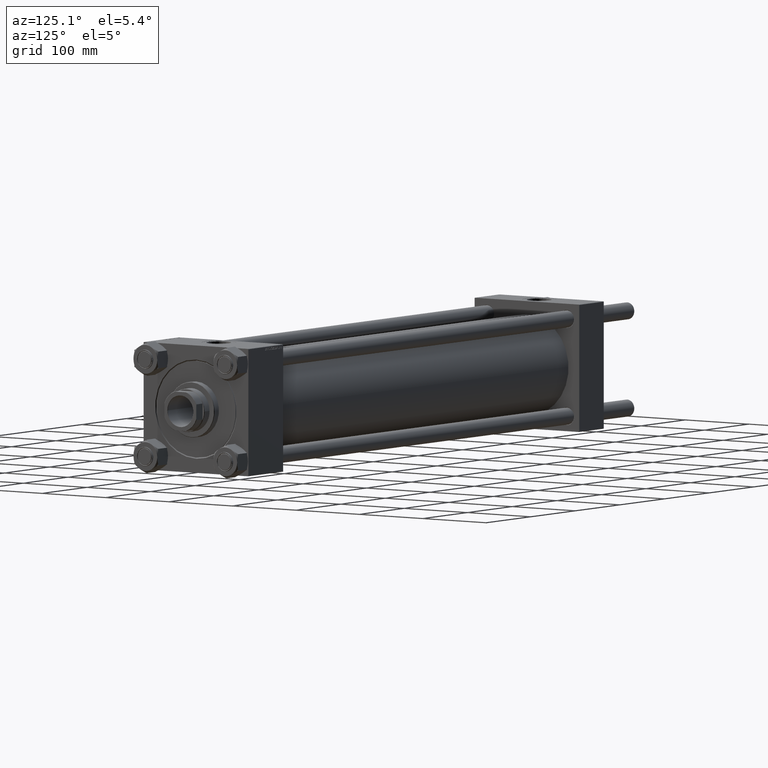
[diagram: clean part render]
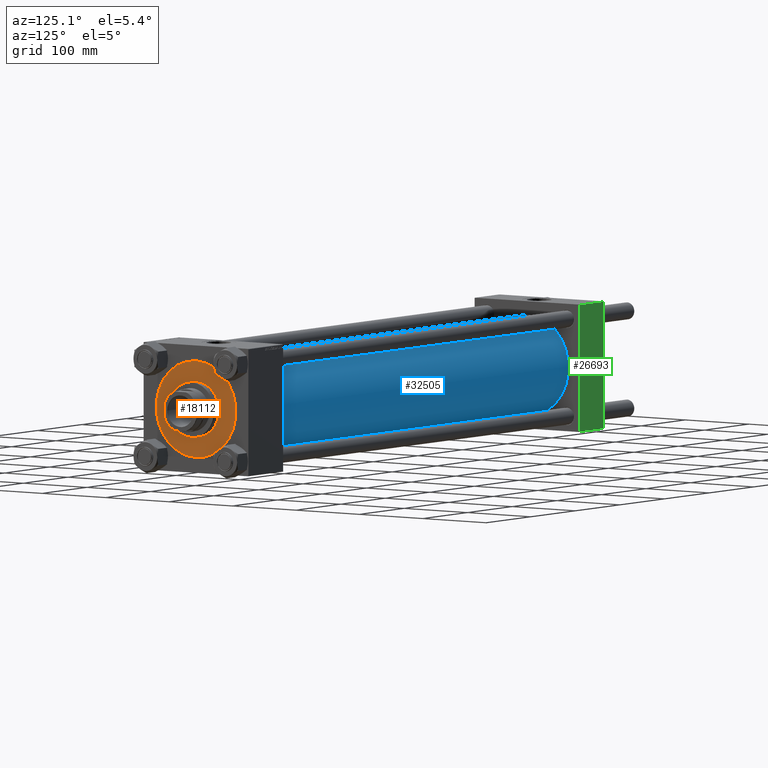
[diagram: same view with three faces highlighted in distinct colors, each labeled with its STEP entity id]
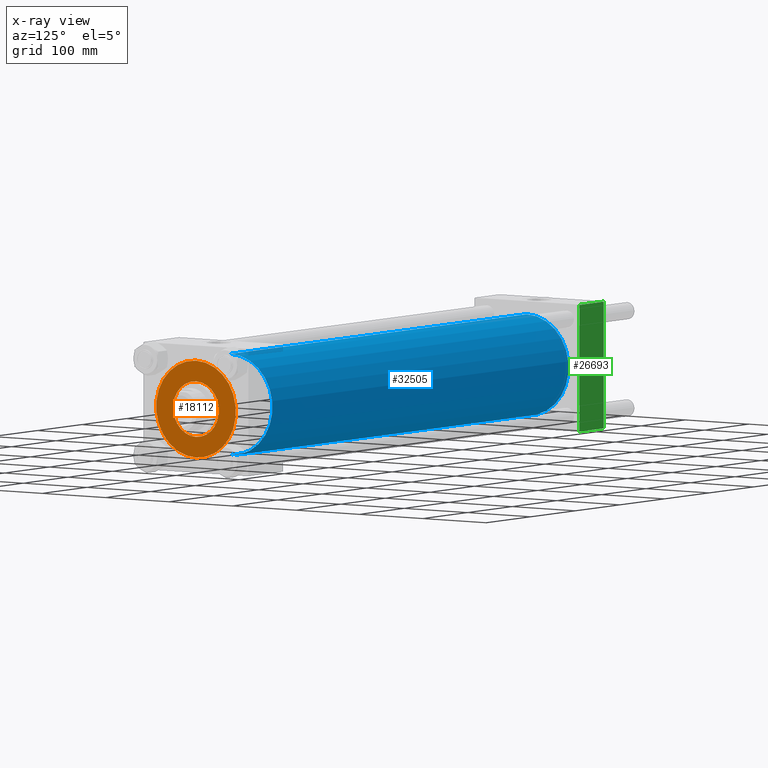
[diagram: x-ray of the same camera — body ghosted, the three highlighted faces saturated]
A machine part, auxiliary view with three faces highlighted in distinct colors.
The next image is the same camera in x-ray (body ghosted, the three faces saturated) — at least one of them is partly hidden behind the body in this view.
Their STEP definitions:

[orange] entity #18112 — the highlighted planar face has unit normal (1, 0, -0).
#344 = CARTESIAN_POINT ( 'NONE',  ( 0.000000000000000000, 0.000000000000000000, 28.69999999999999929 ) ) ;
#2555 = EDGE_LOOP ( 'NONE', ( #29299, #27355 ) ) ;
#5304 = AXIS2_PLACEMENT_3D ( 'NONE', #30859, #42055, #26568 ) ;
#6953 = CARTESIAN_POINT ( 'NONE',  ( 0.000000000000000000, 0.000000000000000000, 28.69999999999999929 ) ) ;
#7921 = CARTESIAN_POINT ( 'NONE',  ( -62.75000000000000000, 0.000000000000000000, 28.69999999999999929 ) ) ;
#8718 = FACE_BOUND ( 'NONE', #12890, .T. ) ;
#9294 = DIRECTION ( 'NONE',  ( 0.000000000000000000, 0.000000000000000000, 1.000000000000000000 ) ) ;
#9882 = CIRCLE ( 'NONE', #21282, 36.00000000000000000 ) ;
#9887 = CARTESIAN_POINT ( 'NONE',  ( -36.00000000000000000, 0.000000000000000000, 28.69999999999999929 ) ) ;
#10104 = AXIS2_PLACEMENT_3D ( 'NONE', #6953, #30363, #18906 ) ;
#11199 = VERTEX_POINT ( 'NONE', #9887 ) ;
#12890 = EDGE_LOOP ( 'NONE', ( #33126, #49051 ) ) ;
#16033 = CARTESIAN_POINT ( 'NONE',  ( 62.75000000000000000, 7.684658664649641591E-15, 28.69999999999999929 ) ) ;
#18112 = ADVANCED_FACE ( 'NONE', ( #8718, #28069 ), #43559, .T. ) ;
#18906 = DIRECTION ( 'NONE',  ( 1.000000000000000000, 0.000000000000000000, 0.000000000000000000 ) ) ;
#21282 = AXIS2_PLACEMENT_3D ( 'NONE', #344, #47132, #23753 ) ;
#23753 = DIRECTION ( 'NONE',  ( 1.000000000000000000, 0.000000000000000000, 0.000000000000000000 ) ) ;
#24079 = EDGE_CURVE ( 'NONE', #30572, #11199, #45031, .T. ) ;
#24257 = CARTESIAN_POINT ( 'NONE',  ( 0.000000000000000000, 0.000000000000000000, 28.69999999999999929 ) ) ;
#24498 = DIRECTION ( 'NONE',  ( 0.000000000000000000, 0.000000000000000000, 1.000000000000000000 ) ) ;
#24682 = AXIS2_PLACEMENT_3D ( 'NONE', #24257, #24498, #39982 ) ;
#25357 = VERTEX_POINT ( 'NONE', #16033 ) ;
#26557 = EDGE_CURVE ( 'NONE', #43942, #25357, #32906, .T. ) ;
#26568 = DIRECTION ( 'NONE',  ( 1.000000000000000000, 0.000000000000000000, 0.000000000000000000 ) ) ;
#27355 = ORIENTED_EDGE ( 'NONE', *, *, #30240, .T. ) ;
#28069 = FACE_OUTER_BOUND ( 'NONE', #2555, .T. ) ;
#29024 = CARTESIAN_POINT ( 'NONE',  ( 36.00000000000000000, 4.408728476930470856E-15, 28.69999999999999929 ) ) ;
#29299 = ORIENTED_EDGE ( 'NONE', *, *, #26557, .T. ) ;
#30240 = EDGE_CURVE ( 'NONE', #25357, #43942, #33050, .T. ) ;
#30363 = DIRECTION ( 'NONE',  ( 0.000000000000000000, 0.000000000000000000, 1.000000000000000000 ) ) ;
#30572 = VERTEX_POINT ( 'NONE', #29024 ) ;
#30859 = CARTESIAN_POINT ( 'NONE',  ( 0.000000000000000000, 0.000000000000000000, 28.69999999999999929 ) ) ;
#32906 = CIRCLE ( 'NONE', #5304, 62.75000000000000000 ) ;
#33050 = CIRCLE ( 'NONE', #47637, 62.75000000000000000 ) ;
#33126 = ORIENTED_EDGE ( 'NONE', *, *, #35489, .F. ) ;
#35489 = EDGE_CURVE ( 'NONE', #11199, #30572, #9882, .T. ) ;
#36006 = CARTESIAN_POINT ( 'NONE',  ( 0.000000000000000000, 0.000000000000000000, 28.69999999999999929 ) ) ;
#39982 = DIRECTION ( 'NONE',  ( 1.000000000000000000, 0.000000000000000000, -0.000000000000000000 ) ) ;
#42055 = DIRECTION ( 'NONE',  ( 0.000000000000000000, 0.000000000000000000, 1.000000000000000000 ) ) ;
#43559 = PLANE ( 'NONE',  #24682 ) ;
#43942 = VERTEX_POINT ( 'NONE', #7921 ) ;
#45031 = CIRCLE ( 'NONE', #10104, 36.00000000000000000 ) ;
#47132 = DIRECTION ( 'NONE',  ( 0.000000000000000000, 0.000000000000000000, 1.000000000000000000 ) ) ;
#47637 = AXIS2_PLACEMENT_3D ( 'NONE', #36006, #9294, #47944 ) ;
#47944 = DIRECTION ( 'NONE',  ( 1.000000000000000000, 0.000000000000000000, 0.000000000000000000 ) ) ;
#49051 = ORIENTED_EDGE ( 'NONE', *, *, #24079, .F. ) ;

[blue] entity #32505 — the highlighted cylindrical surface (partial cylindrical patch) has radius 65.5 mm, axis along (-1, -0, -0).
#971 = DIRECTION ( 'NONE',  ( -1.000000000000000000, -0.000000000000000000, -0.000000000000000000 ) ) ;
#2454 = EDGE_CURVE ( 'NONE', #45204, #17009, #20041, .T. ) ;
#2729 = CARTESIAN_POINT ( 'NONE',  ( 719.0000000000001137, 8.021436534415166404E-15, -65.50000000000001421 ) ) ;
#5358 = FACE_OUTER_BOUND ( 'NONE', #11541, .T. ) ;
#6199 = CARTESIAN_POINT ( 'NONE',  ( 719.0000000000001137, 0.000000000000000000, 65.50000000000001421 ) ) ;
#6536 = DIRECTION ( 'NONE',  ( 0.000000000000000000, 0.000000000000000000, -1.000000000000000000 ) ) ;
#7804 = CARTESIAN_POINT ( 'NONE',  ( 55.00000000000004974, 0.000000000000000000, 0.000000000000000000 ) ) ;
#9799 = ORIENTED_EDGE ( 'NONE', *, *, #31790, .T. ) ;
#10354 = AXIS2_PLACEMENT_3D ( 'NONE', #21888, #36389, #45027 ) ;
#10373 = DIRECTION ( 'NONE',  ( -1.000000000000000000, -0.000000000000000000, -0.000000000000000000 ) ) ;
#11541 = EDGE_LOOP ( 'NONE', ( #19721, #33691, #9799, #14159 ) ) ;
#11935 = CARTESIAN_POINT ( 'NONE',  ( 719.0000000000001137, 8.021436534415166404E-15, -65.50000000000001421 ) ) ;
#12407 = VECTOR ( 'NONE', #10373, 1000.000000000000000 ) ;
#12904 = CARTESIAN_POINT ( 'NONE',  ( 719.0000000000001137, 0.000000000000000000, 65.50000000000001421 ) ) ;
#14159 = ORIENTED_EDGE ( 'NONE', *, *, #36163, .F. ) ;
#15212 = CIRCLE ( 'NONE', #39612, 65.50000000000001421 ) ;
#16059 = CARTESIAN_POINT ( 'NONE',  ( 55.00000000000004974, 8.021436534415166404E-15, -65.50000000000001421 ) ) ;
#16634 = VERTEX_POINT ( 'NONE', #47286 ) ;
#17009 = VERTEX_POINT ( 'NONE', #6199 ) ;
#17490 = LINE ( 'NONE', #12904, #40810 ) ;
#19507 = DIRECTION ( 'NONE',  ( 0.000000000000000000, 0.000000000000000000, 1.000000000000000000 ) ) ;
#19721 = ORIENTED_EDGE ( 'NONE', *, *, #2454, .F. ) ;
#20041 = CIRCLE ( 'NONE', #49267, 65.50000000000001421 ) ;
#21888 = CARTESIAN_POINT ( 'NONE',  ( 719.0000000000001137, 0.000000000000000000, 0.000000000000000000 ) ) ;
#23341 = DIRECTION ( 'NONE',  ( 1.000000000000000000, -0.000000000000000000, -0.000000000000000000 ) ) ;
#25462 = CYLINDRICAL_SURFACE ( 'NONE', #10354, 65.50000000000001421 ) ;
#31790 = EDGE_CURVE ( 'NONE', #43962, #16634, #15212, .T. ) ;
#32505 = ADVANCED_FACE ( 'NONE', ( #5358 ), #25462, .T. ) ;
#33691 = ORIENTED_EDGE ( 'NONE', *, *, #37283, .T. ) ;
#34256 = DIRECTION ( 'NONE',  ( 1.000000000000000000, 0.000000000000000000, 0.000000000000000000 ) ) ;
#36163 = EDGE_CURVE ( 'NONE', #17009, #16634, #17490, .T. ) ;
#36389 = DIRECTION ( 'NONE',  ( -1.000000000000000000, -0.000000000000000000, -0.000000000000000000 ) ) ;
#37283 = EDGE_CURVE ( 'NONE', #45204, #43962, #37575, .T. ) ;
#37575 = LINE ( 'NONE', #2729, #12407 ) ;
#39612 = AXIS2_PLACEMENT_3D ( 'NONE', #7804, #23341, #19507 ) ;
#40810 = VECTOR ( 'NONE', #971, 1000.000000000000000 ) ;
#41890 = CARTESIAN_POINT ( 'NONE',  ( 719.0000000000001137, 0.000000000000000000, 0.000000000000000000 ) ) ;
#43962 = VERTEX_POINT ( 'NONE', #16059 ) ;
#45027 = DIRECTION ( 'NONE',  ( 0.000000000000000000, 0.000000000000000000, 1.000000000000000000 ) ) ;
#45204 = VERTEX_POINT ( 'NONE', #11935 ) ;
#47286 = CARTESIAN_POINT ( 'NONE',  ( 55.00000000000004974, 0.000000000000000000, 65.50000000000001421 ) ) ;
#49267 = AXIS2_PLACEMENT_3D ( 'NONE', #41890, #34256, #6536 ) ;

[green] entity #26693 — the highlighted planar face has unit normal (0, 1, 0).
#4748 = LINE ( 'NONE', #24595, #28797 ) ;
#8200 = CARTESIAN_POINT ( 'NONE',  ( 55.00000000000000000, 82.50000000000002842, 82.50000000000002842 ) ) ;
#8234 = VERTEX_POINT ( 'NONE', #10914 ) ;
#8451 = PLANE ( 'NONE',  #41872 ) ;
#10914 = CARTESIAN_POINT ( 'NONE',  ( 0.000000000000000000, 82.50000000000002842, -82.00000000000000000 ) ) ;
#14811 = LINE ( 'NONE', #30350, #30728 ) ;
#14882 = VERTEX_POINT ( 'NONE', #28388 ) ;
#16582 = DIRECTION ( 'NONE',  ( 0.000000000000000000, -0.000000000000000000, 1.000000000000000000 ) ) ;
#18275 = CARTESIAN_POINT ( 'NONE',  ( 55.00000000000000000, 82.50000000000002842, 82.00000000000005684 ) ) ;
#19903 = CARTESIAN_POINT ( 'NONE',  ( 55.00000000000000000, 82.50000000000002842, 82.50000000000002842 ) ) ;
#20588 = ORIENTED_EDGE ( 'NONE', *, *, #45859, .T. ) ;
#20762 = DIRECTION ( 'NONE',  ( 0.000000000000000000, 0.000000000000000000, -1.000000000000000000 ) ) ;
#23195 = EDGE_CURVE ( 'NONE', #34494, #45160, #38222, .T. ) ;
#24595 = CARTESIAN_POINT ( 'NONE',  ( 0.000000000000000000, 82.50000000000002842, 82.50000000000002842 ) ) ;
#26693 = ADVANCED_FACE ( 'NONE', ( #47611 ), #8451, .T. ) ;
#27146 = VECTOR ( 'NONE', #46114, 1000.000000000000000 ) ;
#28388 = CARTESIAN_POINT ( 'NONE',  ( 0.000000000000000000, 82.50000000000002842, 82.00000000000005684 ) ) ;
#28797 = VECTOR ( 'NONE', #20762, 1000.000000000000000 ) ;
#30350 = CARTESIAN_POINT ( 'NONE',  ( 55.00000000000000000, 82.50000000000002842, -82.00000000000000000 ) ) ;
#30728 = VECTOR ( 'NONE', #35150, 1000.000000000000000 ) ;
#30910 = LINE ( 'NONE', #46410, #45019 ) ;
#31932 = ORIENTED_EDGE ( 'NONE', *, *, #23195, .T. ) ;
#32460 = ORIENTED_EDGE ( 'NONE', *, *, #45626, .F. ) ;
#33199 = EDGE_CURVE ( 'NONE', #45160, #8234, #14811, .T. ) ;
#34494 = VERTEX_POINT ( 'NONE', #18275 ) ;
#35150 = DIRECTION ( 'NONE',  ( -1.000000000000000000, 0.000000000000000000, 0.000000000000000000 ) ) ;
#36669 = EDGE_LOOP ( 'NONE', ( #31932, #43116, #32460, #20588 ) ) ;
#38222 = LINE ( 'NONE', #19903, #27146 ) ;
#39231 = DIRECTION ( 'NONE',  ( -0.000000000000000000, 1.000000000000000000, 0.000000000000000000 ) ) ;
#41872 = AXIS2_PLACEMENT_3D ( 'NONE', #8200, #39231, #16582 ) ;
#42223 = CARTESIAN_POINT ( 'NONE',  ( 55.00000000000000000, 82.50000000000002842, -82.00000000000000000 ) ) ;
#43116 = ORIENTED_EDGE ( 'NONE', *, *, #33199, .T. ) ;
#45019 = VECTOR ( 'NONE', #45922, 1000.000000000000000 ) ;
#45160 = VERTEX_POINT ( 'NONE', #42223 ) ;
#45626 = EDGE_CURVE ( 'NONE', #14882, #8234, #4748, .T. ) ;
#45859 = EDGE_CURVE ( 'NONE', #14882, #34494, #30910, .T. ) ;
#45922 = DIRECTION ( 'NONE',  ( 1.000000000000000000, 0.000000000000000000, 0.000000000000000000 ) ) ;
#46114 = DIRECTION ( 'NONE',  ( 0.000000000000000000, 0.000000000000000000, -1.000000000000000000 ) ) ;
#46410 = CARTESIAN_POINT ( 'NONE',  ( 55.00000000000000000, 82.50000000000002842, 82.00000000000005684 ) ) ;
#47611 = FACE_OUTER_BOUND ( 'NONE', #36669, .T. ) ;